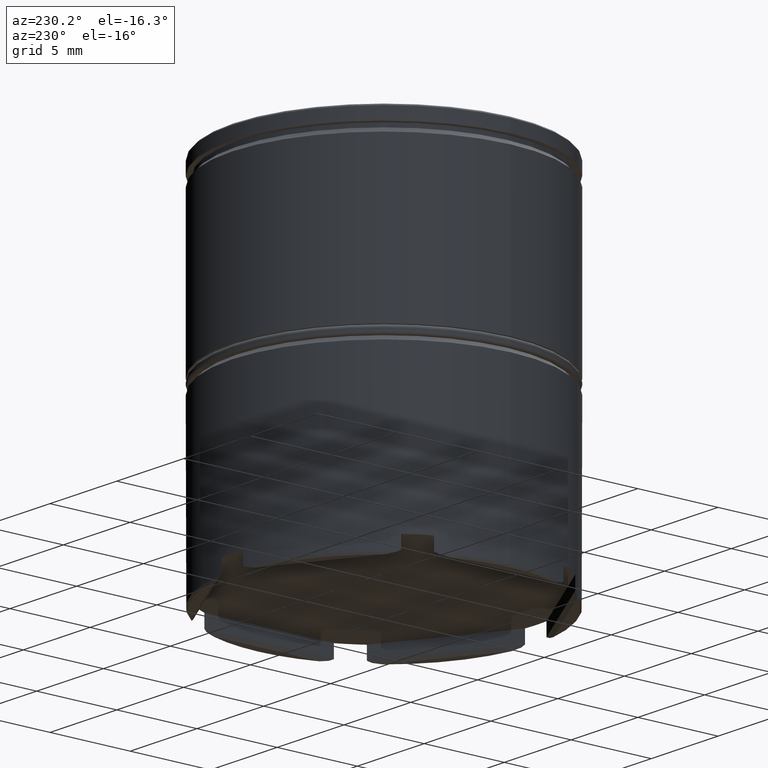
[diagram: clean part render]
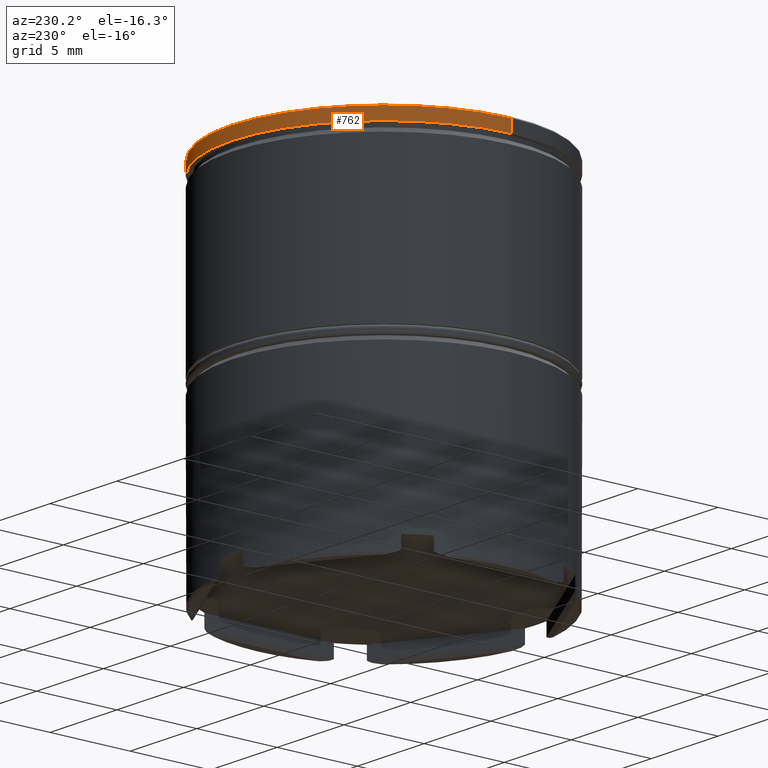
[diagram: same view with one face highlighted and labeled with its STEP entity id]
A machine part, auxiliary view. The second image highlights one B-rep face of the part: STEP entity #762.
In plain terms, the highlighted cylindrical surface (partial cylindrical patch) has radius 9.5 mm, axis along (-0, -0, 1).
Its self-contained STEP definition (entity closure, byte-faithful):
#3 = DIRECTION ( 'NONE',  ( 0.000000000000000000, 0.000000000000000000, -1.000000000000000000 ) ) ;
#46 = CIRCLE ( 'NONE', #459, 9.500000000000000000 ) ;
#90 = EDGE_CURVE ( 'NONE', #219, #1048, #931, .T. ) ;
#219 = VERTEX_POINT ( 'NONE', #1255 ) ;
#250 = EDGE_CURVE ( 'NONE', #750, #602, #46, .T. ) ;
#257 = LINE ( 'NONE', #1019, #1603 ) ;
#282 = ORIENTED_EDGE ( 'NONE', *, *, #915, .T. ) ;
#313 = EDGE_CURVE ( 'NONE', #750, #1048, #257, .T. ) ;
#380 = LINE ( 'NONE', #1632, #558 ) ;
#387 = DIRECTION ( 'NONE',  ( -0.000000000000000000, -0.000000000000000000, 1.000000000000000000 ) ) ;
#435 = AXIS2_PLACEMENT_3D ( 'NONE', #973, #3, #839 ) ;
#440 = CARTESIAN_POINT ( 'NONE',  ( 9.500000000000000000, 0.000000000000000000, -0.09999999999999593936 ) ) ;
#459 = AXIS2_PLACEMENT_3D ( 'NONE', #643, #1530, #1380 ) ;
#474 = ORIENTED_EDGE ( 'NONE', *, *, #250, .T. ) ;
#506 = CYLINDRICAL_SURFACE ( 'NONE', #1131, 9.500000000000000000 ) ;
#558 = VECTOR ( 'NONE', #1256, 1000.000000000000000 ) ;
#602 = VERTEX_POINT ( 'NONE', #1466 ) ;
#643 = CARTESIAN_POINT ( 'NONE',  ( 0.000000000000000000, 0.000000000000000000, -0.8749999999999998890 ) ) ;
#750 = VERTEX_POINT ( 'NONE', #1534 ) ;
#762 = ADVANCED_FACE ( 'NONE', ( #1124 ), #506, .T. ) ;
#839 = DIRECTION ( 'NONE',  ( 1.000000000000000000, 0.000000000000000000, 0.000000000000000000 ) ) ;
#885 = ORIENTED_EDGE ( 'NONE', *, *, #313, .F. ) ;
#915 = EDGE_CURVE ( 'NONE', #602, #219, #380, .T. ) ;
#931 = CIRCLE ( 'NONE', #435, 9.500000000000000000 ) ;
#973 = CARTESIAN_POINT ( 'NONE',  ( 0.000000000000000000, 0.000000000000000000, -0.09999999999999593936 ) ) ;
#1006 = CARTESIAN_POINT ( 'NONE',  ( 0.000000000000000000, 0.000000000000000000, 0.000000000000000000 ) ) ;
#1019 = CARTESIAN_POINT ( 'NONE',  ( 9.500000000000000000, 0.000000000000000000, 0.000000000000000000 ) ) ;
#1048 = VERTEX_POINT ( 'NONE', #440 ) ;
#1124 = FACE_OUTER_BOUND ( 'NONE', #1447, .T. ) ;
#1131 = AXIS2_PLACEMENT_3D ( 'NONE', #1006, #1518, #1134 ) ;
#1134 = DIRECTION ( 'NONE',  ( 1.000000000000000000, 0.000000000000000000, 0.000000000000000000 ) ) ;
#1151 = ORIENTED_EDGE ( 'NONE', *, *, #90, .T. ) ;
#1255 = CARTESIAN_POINT ( 'NONE',  ( -9.500000000000000000, 1.163414459189985485E-15, -0.09999999999999593936 ) ) ;
#1256 = DIRECTION ( 'NONE',  ( -0.000000000000000000, -0.000000000000000000, 1.000000000000000000 ) ) ;
#1380 = DIRECTION ( 'NONE',  ( 1.000000000000000000, 0.000000000000000000, 0.000000000000000000 ) ) ;
#1447 = EDGE_LOOP ( 'NONE', ( #474, #282, #1151, #885 ) ) ;
#1466 = CARTESIAN_POINT ( 'NONE',  ( -9.500000000000000000, 1.163414459189985485E-15, -0.8749999999999998890 ) ) ;
#1518 = DIRECTION ( 'NONE',  ( -0.000000000000000000, -0.000000000000000000, 1.000000000000000000 ) ) ;
#1530 = DIRECTION ( 'NONE',  ( -0.000000000000000000, -0.000000000000000000, 1.000000000000000000 ) ) ;
#1534 = CARTESIAN_POINT ( 'NONE',  ( 9.500000000000000000, 0.000000000000000000, -0.8749999999999998890 ) ) ;
#1603 = VECTOR ( 'NONE', #387, 1000.000000000000000 ) ;
#1632 = CARTESIAN_POINT ( 'NONE',  ( -9.500000000000000000, 1.163414459189985485E-15, 0.000000000000000000 ) ) ;